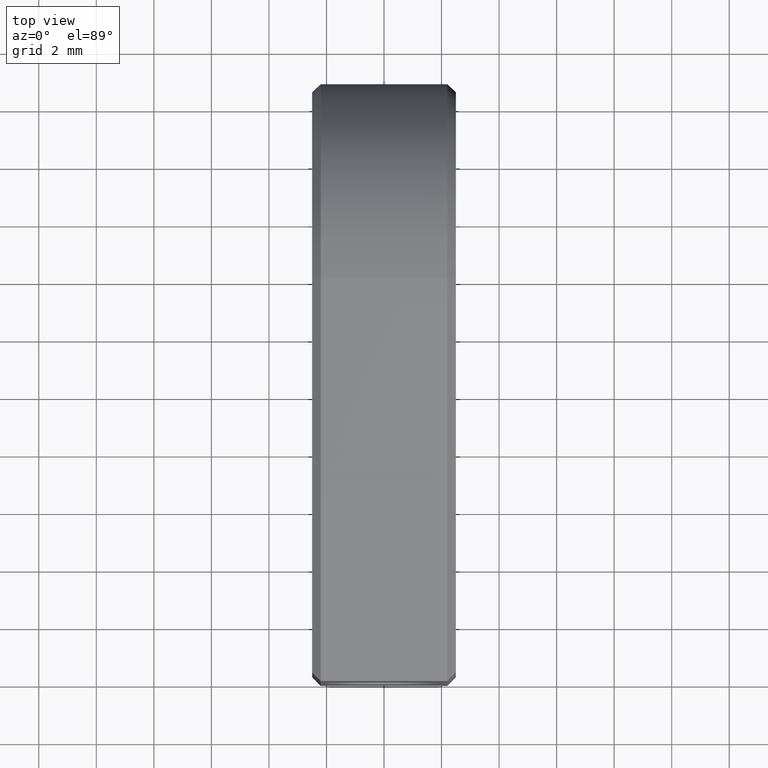
[diagram: clean part render]
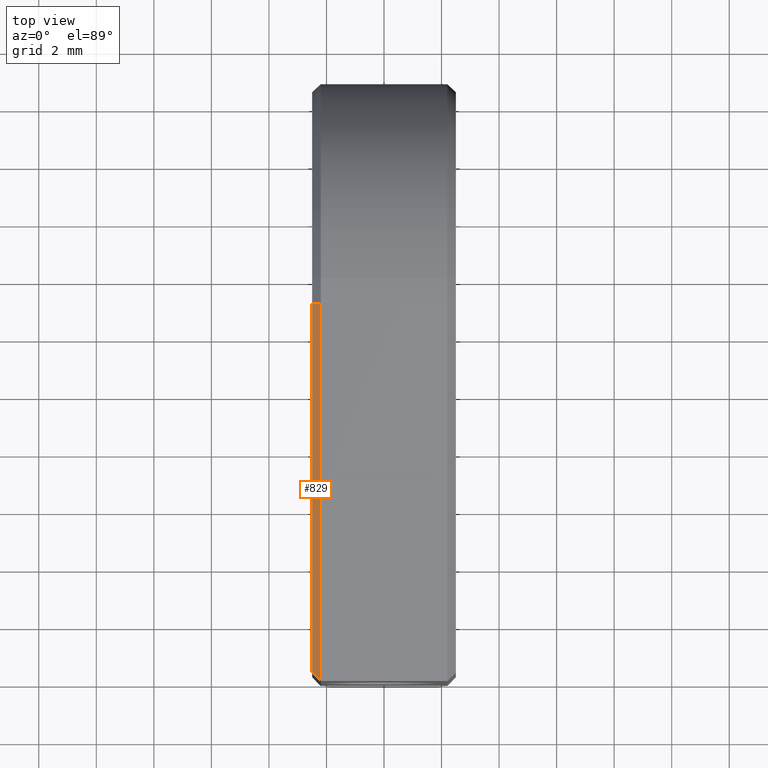
[diagram: same view with one face highlighted and labeled with its STEP entity id]
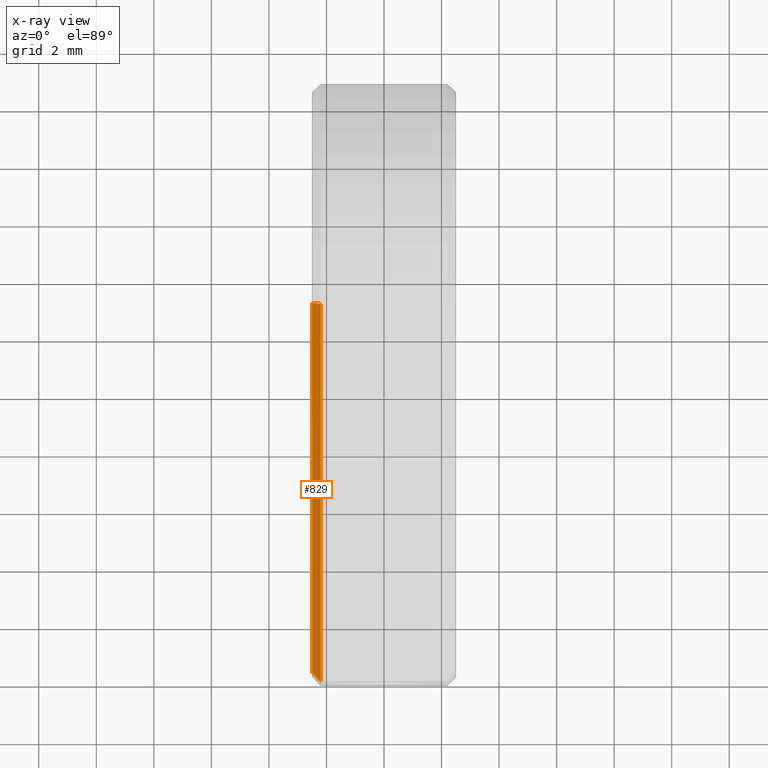
[diagram: x-ray of the same camera — body ghosted, the highlighted face saturated]
A machine part, top view. The second image highlights one B-rep face of the part: STEP entity #829.
The next image is the same camera in x-ray: the body ghosted, the highlighted face saturated — about 0% of this face is hidden behind the body in this view.
In plain terms, the highlighted planar face has unit normal (0.7071, 0.0958, -0.7006).
Its self-contained STEP definition (entity closure, byte-faithful):
#43 = VERTEX_POINT ( 'NONE', #615 ) ;
#66 = CARTESIAN_POINT ( 'NONE',  ( -2.199999999999998401, -0.9277188611101542248, 6.786887188891565614 ) ) ;
#127 = CARTESIAN_POINT ( 'NONE',  ( -2.500000000000000000, -0.8870888379958404846, 6.489651253611639525 ) ) ;
#128 = EDGE_CURVE ( 'NONE', #1234, #43, #736, .T. ) ;
#154 = CARTESIAN_POINT ( 'NONE',  ( -2.500000000000000000, -13.69999999999999929, 4.738218082573262713 ) ) ;
#258 = CARTESIAN_POINT ( 'NONE',  ( -6.369210258335908037, -9.830789741664078818, 1.361920481392063342 ) ) ;
#293 = ORIENTED_EDGE ( 'NONE', *, *, #128, .F. ) ;
#441 = VECTOR ( 'NONE', #1111, 1000.000000000000000 ) ;
#463 = DIRECTION ( 'NONE',  ( 0.0000000000000000000, -0.9907864509330754910, -0.1354334103810444778 ) ) ;
#615 = CARTESIAN_POINT ( 'NONE',  ( -2.199999999999999289, -14.00000000000000000, 4.999999999999998224 ) ) ;
#623 = CARTESIAN_POINT ( 'NONE',  ( -2.199999999999999289, -0.9277188611101542248, 6.786887188891565614 ) ) ;
#631 = VERTEX_POINT ( 'NONE', #154 ) ;
#671 = ORIENTED_EDGE ( 'NONE', *, *, #1104, .F. ) ;
#701 = VERTEX_POINT ( 'NONE', #127 ) ;
#719 = CARTESIAN_POINT ( 'NONE',  ( -2.199999999999999289, -0.9277188611101542248, 6.786887188891565614 ) ) ;
#736 = LINE ( 'NONE', #623, #981 ) ;
#739 = FACE_OUTER_BOUND ( 'NONE', #1462, .T. ) ;
#829 = ADVANCED_FACE ( 'NONE', ( #739 ), #1289, .F. ) ;
#904 = ORIENTED_EDGE ( 'NONE', *, *, #1034, .T. ) ;
#912 = LINE ( 'NONE', #1298, #1592 ) ;
#944 = EDGE_CURVE ( 'NONE', #631, #701, #912, .T. ) ;
#967 = DIRECTION ( 'NONE',  ( -0.7071067811865451302, 0.09576588287965730195, -0.7005918181625325758 ) ) ;
#981 = VECTOR ( 'NONE', #1718, 1000.000000000000000 ) ;
#1034 = EDGE_CURVE ( 'NONE', #1234, #701, #1511, .T. ) ;
#1076 = LINE ( 'NONE', #258, #441 ) ;
#1104 = EDGE_CURVE ( 'NONE', #43, #631, #1076, .T. ) ;
#1111 = DIRECTION ( 'NONE',  ( -0.6017720932335882678, 0.6017720932335900441, -0.5251101747352922011 ) ) ;
#1206 = CARTESIAN_POINT ( 'NONE',  ( -2.199999999999998401, -0.9277188611101542248, 6.786887188891565614 ) ) ;
#1214 = AXIS2_PLACEMENT_3D ( 'NONE', #66, #1686, #463 ) ;
#1234 = VERTEX_POINT ( 'NONE', #719 ) ;
#1289 = PLANE ( 'NONE',  #1214 ) ;
#1298 = CARTESIAN_POINT ( 'NONE',  ( -2.500000000000000000, -0.8870888379958405956, 6.489651253611639525 ) ) ;
#1325 = ORIENTED_EDGE ( 'NONE', *, *, #944, .F. ) ;
#1462 = EDGE_LOOP ( 'NONE', ( #904, #1325, #671, #293 ) ) ;
#1463 = DIRECTION ( 'NONE',  ( 0.0000000000000000000, 0.9907864509330754910, 0.1354334103810444778 ) ) ;
#1471 = VECTOR ( 'NONE', #967, 1000.000000000000114 ) ;
#1511 = LINE ( 'NONE', #1206, #1471 ) ;
#1592 = VECTOR ( 'NONE', #1463, 1000.000000000000000 ) ;
#1686 = DIRECTION ( 'NONE',  ( 0.7071067811865497932, 0.09576588287965680235, -0.7005918181625279129 ) ) ;
#1718 = DIRECTION ( 'NONE',  ( 0.0000000000000000000, -0.9907864509330754910, -0.1354334103810444778 ) ) ;